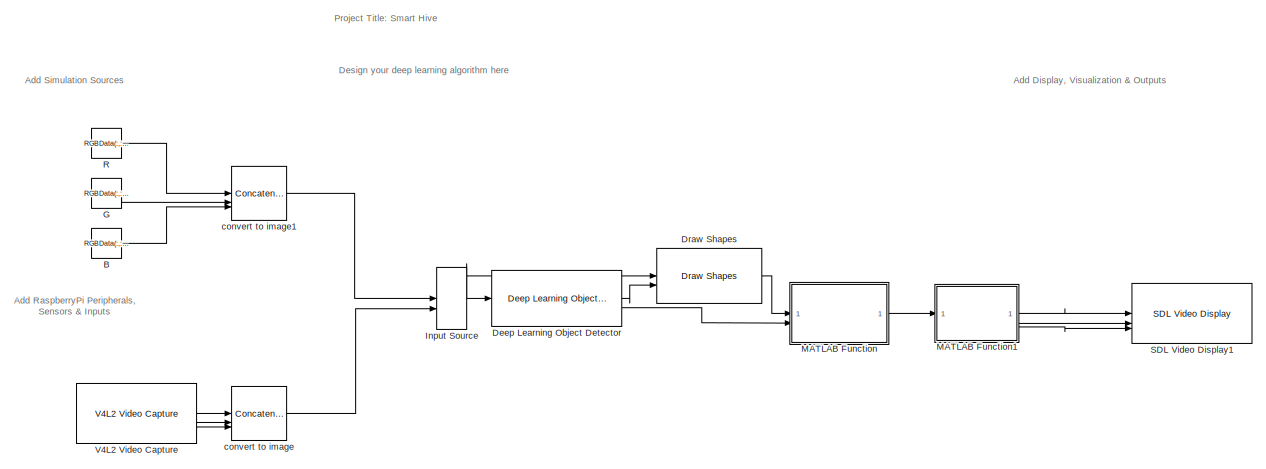
[diagram: root canvas - part 1/3, top center region]
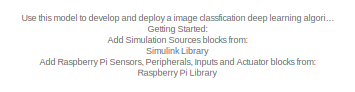
[diagram: root canvas - part 2/3, top left region]
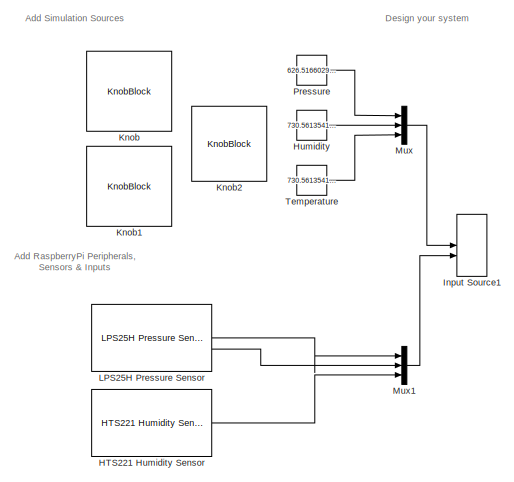
[diagram: root canvas - part 3/3, bottom center region]
MODEL slx_47d58abedd61
KIND model
CONFIG AbsTol = auto
CONFIG EnableMultiTasking = on
CONFIG FixedStep = auto
CONFIG MaxStep = auto
CONFIG MinStep = auto
CONFIG RelTol = 1e-3
CONFIG SampleTimeConstraint = Unconstrained
CONFIG SolverName = ode45
CONFIG StartTime = 0.0
CONFIG StopTime = 10.0
WORKSPACE source: mxarray member
WORKSPACE RGBData = [62 63 65 64 60 62 65 62 60 59 59 59 ... (230400 elements, 320x240x3)]
BLOCK [Constant] B
  OutDataTypeStr = uint8
  SampleTime = 0.1
  Value = RGBData(:,:,3)
BLOCK [Reference] Deep Learning Object Detector  REF=visionanalysis/Deep Learning Object Detector
  SourceBlock = visionanalysis/Deep Learning Object Detector
  SourceType = Deep Learning Object Detector
BLOCK [Reference] Draw Shapes  REF=visiontextngfix/Draw Shapes
  SourceBlock = visiontextngfix/Draw Shapes
  SourceType = Draw Shapes
BLOCK [Constant] G
  OutDataTypeStr = uint8
  SampleTime = 0.1
  Value = RGBData(:,:,2)
BLOCK [Reference] HTS221 Humidity Sensor  REF=sensehatlib/HTS221 Humidity Sensor
  SourceBlock = sensehatlib/HTS221 Humidity Sensor
  SourceType = raspi.internal.hts221Block
BLOCK [Constant] Humidity
  Value = 730.5613541666667
BLOCK [ManualSwitch] Input Source
  CurrentSetting = 0
BLOCK [ManualSwitch] Input Source1
  CurrentSetting = 0
BLOCK [KnobBlock] Knob
  ScaleMax = 1024
BLOCK [KnobBlock] Knob1
  ScaleMax = 1024
BLOCK [KnobBlock] Knob2
  ScaleMax = 1024
BLOCK [Reference] LPS25H Pressure Sensor  REF=sensehatlib/LPS25H Pressure Sensor
  SourceBlock = sensehatlib/LPS25H Pressure Sensor
  SourceType = raspi.internal.lps25hBlock
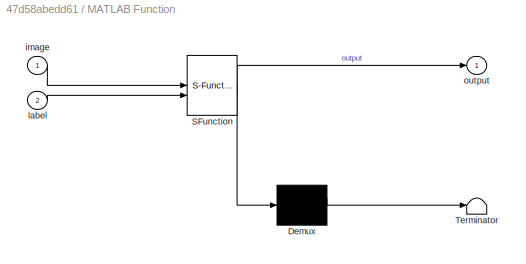
BLOCK [SubSystem] MATLAB Function
  ErrorFcn = Stateflow.Translate.translate
  LibrarySourceBlock = simulink/User-Defined\nFunctions/MATLAB Function
  PermitHierarchicalResolution = ExplicitOnly
  SFBlockType = MATLAB Function
  TreatAsAtomicUnit = on
BLOCK [Demux] MATLAB Function/ Demux 
  Outputs = 1
BLOCK [S-Function] MATLAB Function/ SFunction 
  EnableBusSupport = off
  FunctionName = sf_sfun
  PortCounts = [2 2]
  SFcnIsStateOwnerBlock = off
  SFunctionDeploymentMode = off
  Tag = Stateflow S-Function 3
BLOCK [Terminator] MATLAB Function/ Terminator 
BLOCK [Inport] MATLAB Function/image
BLOCK [Inport] MATLAB Function/label
  Port = 2
BLOCK [Outport] MATLAB Function/output
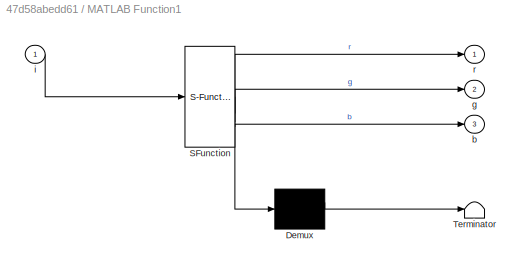
BLOCK [SubSystem] MATLAB Function1
  ErrorFcn = Stateflow.Translate.translate
  PermitHierarchicalResolution = ExplicitOnly
  SFBlockType = MATLAB Function
  TreatAsAtomicUnit = on
BLOCK [Demux] MATLAB Function1/ Demux 
  Outputs = 1
BLOCK [S-Function] MATLAB Function1/ SFunction 
  EnableBusSupport = off
  FunctionName = sf_sfun
  PortCounts = [1 4]
  SFcnIsStateOwnerBlock = off
  SFunctionDeploymentMode = off
  Tag = Stateflow S-Function 1
BLOCK [Terminator] MATLAB Function1/ Terminator 
BLOCK [Outport] MATLAB Function1/b
  Port = 3
BLOCK [Outport] MATLAB Function1/g
  Port = 2
BLOCK [Inport] MATLAB Function1/i
BLOCK [Outport] MATLAB Function1/r
BLOCK [Mux] Mux
  DisplayOption = bar
  Inputs = 3
BLOCK [Mux] Mux1
  DisplayOption = bar
  Inputs = 3
BLOCK [Constant] Pressure
  Value = 626.516602941941
BLOCK [Constant] R
  OutDataTypeStr = uint8
  SampleTime = 0.1
  Value = RGBData(:,:,1)
BLOCK [Reference] SDL Video Display1  REF=raspberrypiAVlib/SDL Video Display
  SourceBlock = raspberrypiAVlib/SDL Video Display
  SourceType = SDL Video Display
BLOCK [Constant] Temperature
  Value = 730.5613541666667
BLOCK [Reference] V4L2 Video Capture  REF=raspberrypiAVlib/V4L2 Video Capture
  SourceBlock = raspberrypiAVlib/V4L2 Video Capture
  SourceType = codertarget.raspi.internal.Raspiv4l2Capture
BLOCK [Concatenate] convert to image
  ConcatenateDimension = 3
  Mode = Multidimensional array
  NumInputs = 3
BLOCK [Concatenate] convert to image1
  ConcatenateDimension = 3
  Mode = Multidimensional array
  NumInputs = 3
ANNOTATION (root): Use this model to develop and deploy a image classfication deep learning algorithm on the Raspberry Pi hardware. Getting Started: Add Simulation Sources blocks from: Simulink Library Add Raspberry Pi Sensors, Peripherals, Inputs and Actuator blocks from: Raspberry Pi Library Configure Raspberry Pi Hardware: Open Model Configuration Parameters dialog Under the Hardware Implementation option, select...<+852ch>
ANNOTATION (root): Add Display, Visualization & Outputs
ANNOTATION (root): Add RaspberryPi Peripherals, Sensors & Inputs
ANNOTATION (root): Add Simulation Sources
ANNOTATION (root): Design your deep learning algorithm here
ANNOTATION (root): Design your system
ANNOTATION (root): Project Title: Smart Hive
LINE B:1 -> convert to image1:3
LINE Deep Learning Object Detector:1 -> Draw Shapes:2
LINE Deep Learning Object Detector:2 -> MATLAB Function:2
LINE Draw Shapes:1 -> MATLAB Function:1
LINE G:1 -> convert to image1:2
LINE HTS221 Humidity Sensor:1 -> Mux1:3
LINE Humidity:1 -> Mux:2
NET Input Source:1 -> Deep Learning Object Detector:1, Draw Shapes:1
LINE LPS25H Pressure Sensor:1 -> Mux1:1
LINE LPS25H Pressure Sensor:2 -> Mux1:2
LINE MATLAB Function1:1 -> SDL Video Display1:1
LINE MATLAB Function1:2 -> SDL Video Display1:2
LINE MATLAB Function1:3 -> SDL Video Display1:3
LINE MATLAB Function:1 -> MATLAB Function1:1
LINE Mux1:1 -> Input Source1:2
LINE Mux:1 -> Input Source1:1
LINE Pressure:1 -> Mux:1
LINE R:1 -> convert to image1:1
LINE Temperature:1 -> Mux:3
LINE V4L2 Video Capture:1 -> convert to image:1
LINE V4L2 Video Capture:2 -> convert to image:2
LINE V4L2 Video Capture:3 -> convert to image:3
LINE convert to image1:1 -> Input Source:1
LINE convert to image:1 -> Input Source:2
note: NET lines group one-source signal fan-out (src -> all destinations, sorted); 1:1 wires keep LINE
CHART MATLAB Function states=1 transitions=1
  STATE_LABEL 'eML_blk_kernel()'
  STATE_LABEL 'SCRIPT:\n\nfunction output = addLabel(image,label)\n%#codegen\nlabel_str = cellstr(label);\ntext2display = sprintf("Label : %s \\nScore: %f", label_str{:}, max_score);\n% Para la generación de código, text2display necesita ser de tipo cell\n% en vez de string\nctext2display = cellstr(text2display);\n% Insertamos en img, en la posición 0,0, el texto previamente calculado\noutput = insertText(image, [0,0], cte...<+16ch>'
CHART MATLAB Function1 states=1 transitions=1
  STATE_LABEL 'eML_blk_kernel()'
  STATE_LABEL 'SCRIPT:\nfunction [r,g,b] = ImageToRGB(i)\n%#codegen\nr =i(:,:,1);\ng =i(:,:,2);\nb =i(:,:,3);\nend'
CHART  states=0 transitions=0
CHART  states=0 transitions=0
